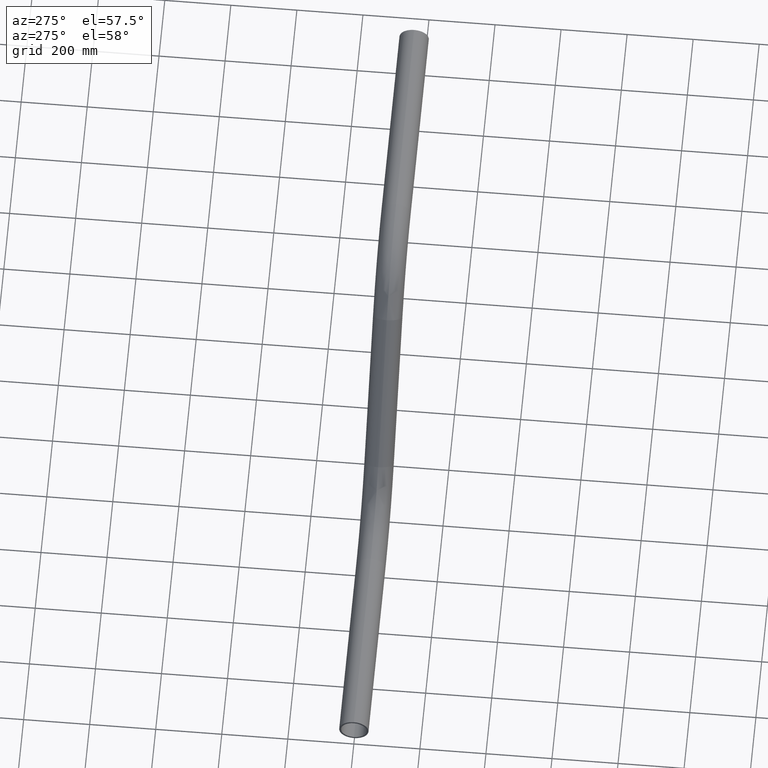
[diagram: clean part render]
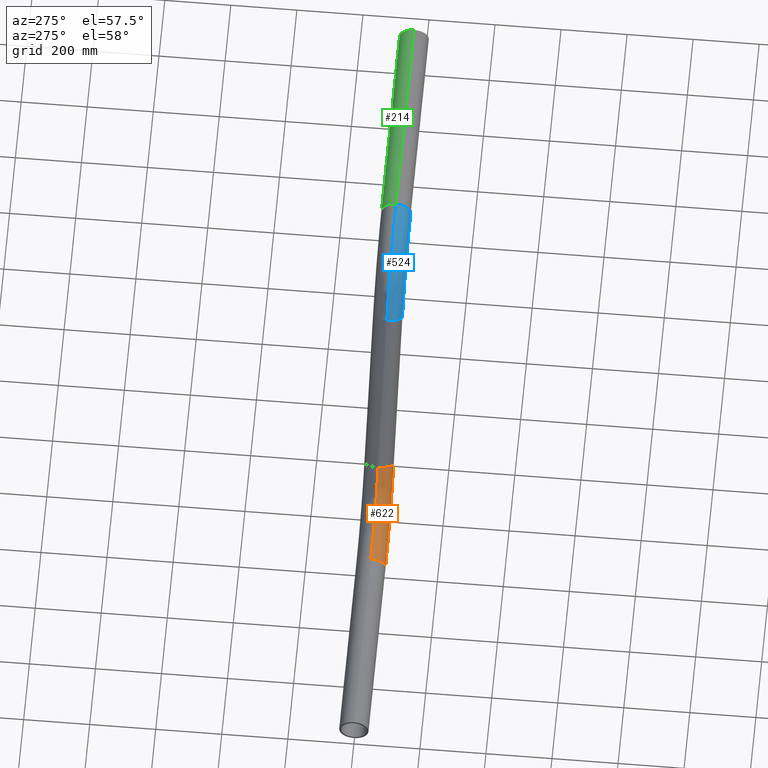
[diagram: same view with three faces highlighted in distinct colors, each labeled with its STEP entity id]
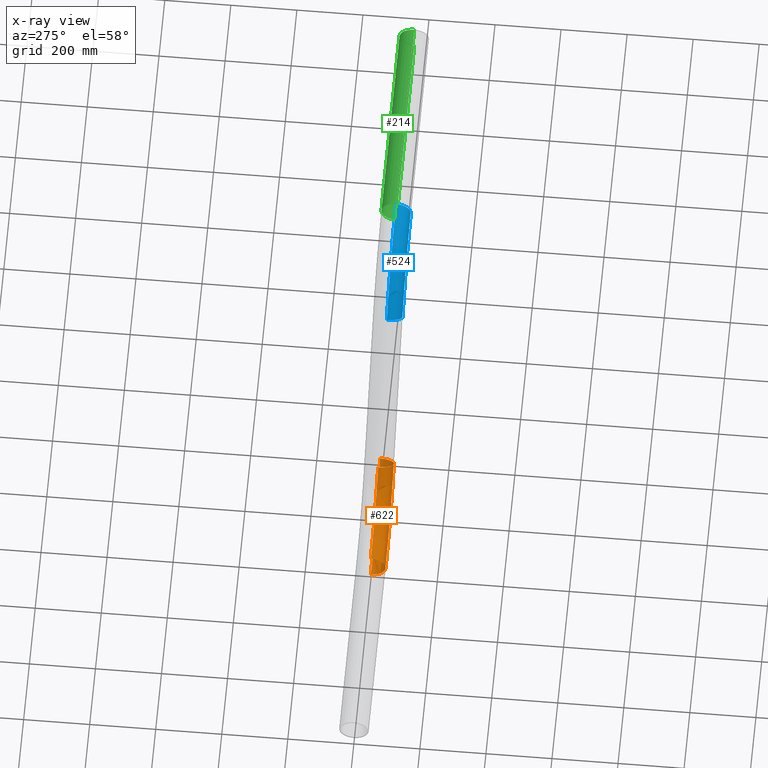
[diagram: x-ray of the same camera — body ghosted, the three highlighted faces saturated]
A machine part, auxiliary view with three faces highlighted in distinct colors.
The next image is the same camera in x-ray (body ghosted, the three faces saturated) — at least one of them is partly hidden behind the body in this view.
Their STEP definitions:

[orange] entity #622 — the highlighted toroidal blend (fillet) surface has major radius 375 mm and minor (blend) radius 44.45 mm.
#11 = DIRECTION ( 'NONE',  ( 0.000000000000000000, 1.000000000000000000, 0.000000000000000000 ) ) ;
#13 = AXIS2_PLACEMENT_3D ( 'NONE', #129, #449, #195 ) ;
#35 = DIRECTION ( 'NONE',  ( 0.6427876096865375866, 0.000000000000000000, 0.7660444431189794567 ) ) ;
#43 = DIRECTION ( 'NONE',  ( 1.000000000000000000, 0.000000000000000000, 0.000000000000000000 ) ) ;
#44 = VERTEX_POINT ( 'NONE', #611 ) ;
#55 = CARTESIAN_POINT ( 'NONE',  ( 586.7355748789869949, 5.443555022209986486E-15, -44.45000000000000995 ) ) ;
#63 = CARTESIAN_POINT ( 'NONE',  ( 586.7355748789869949, -5.443555022209986486E-15, 375.0000000000000000 ) ) ;
#67 = ORIENTED_EDGE ( 'NONE', *, *, #303, .T. ) ;
#71 = CARTESIAN_POINT ( 'NONE',  ( 586.7355748789869949, 0.000000000000000000, 375.0000000000000000 ) ) ;
#119 = CIRCLE ( 'NONE', #13, 419.4499999999998749 ) ;
#129 = CARTESIAN_POINT ( 'NONE',  ( 586.7355748789869949, 0.000000000000000000, 375.0000000000000000 ) ) ;
#131 = DIRECTION ( 'NONE',  ( 0.000000000000000000, 0.000000000000000000, -1.000000000000000000 ) ) ;
#187 = CIRCLE ( 'NONE', #392, 44.45000000000000995 ) ;
#195 = DIRECTION ( 'NONE',  ( 0.000000000000000000, 0.000000000000000000, 1.000000000000000000 ) ) ;
#226 = FACE_OUTER_BOUND ( 'NONE', #305, .T. ) ;
#230 = CARTESIAN_POINT ( 'NONE',  ( 839.9515655519659276, 0.000000000000000000, 162.5265556181147986 ) ) ;
#243 = AXIS2_PLACEMENT_3D ( 'NONE', #63, #11, #589 ) ;
#244 = CARTESIAN_POINT ( 'NONE',  ( 586.7355748789869949, 0.000000000000000000, 44.45000000000000995 ) ) ;
#284 = DIRECTION ( 'NONE',  ( 0.000000000000000000, 1.000000000000000000, 0.000000000000000000 ) ) ;
#291 = CARTESIAN_POINT ( 'NONE',  ( 874.0022410486042190, 0.000000000000000000, 133.9546463675484347 ) ) ;
#295 = DIRECTION ( 'NONE',  ( 0.7660444431189794567, 0.000000000000000000, -0.6427876096865375866 ) ) ;
#300 = CIRCLE ( 'NONE', #491, 44.45000000000000995 ) ;
#303 = EDGE_CURVE ( 'NONE', #650, #394, #548, .T. ) ;
#305 = EDGE_LOOP ( 'NONE', ( #542, #626, #67, #475 ) ) ;
#365 = EDGE_CURVE ( 'NONE', #44, #486, #119, .T. ) ;
#373 = EDGE_CURVE ( 'NONE', #650, #44, #300, .T. ) ;
#392 = AXIS2_PLACEMENT_3D ( 'NONE', #444, #43, #131 ) ;
#394 = VERTEX_POINT ( 'NONE', #244 ) ;
#395 = EDGE_CURVE ( 'NONE', #394, #486, #187, .T. ) ;
#416 = TOROIDAL_SURFACE ( 'NONE', #616, 374.9999999999999432, 44.45000000000000995 ) ;
#444 = CARTESIAN_POINT ( 'NONE',  ( 586.7355748789869949, 0.000000000000000000, 0.000000000000000000 ) ) ;
#449 = DIRECTION ( 'NONE',  ( 0.000000000000000000, 1.000000000000000000, 0.000000000000000000 ) ) ;
#475 = ORIENTED_EDGE ( 'NONE', *, *, #395, .T. ) ;
#486 = VERTEX_POINT ( 'NONE', #55 ) ;
#491 = AXIS2_PLACEMENT_3D ( 'NONE', #291, #35, #295 ) ;
#527 = DIRECTION ( 'NONE',  ( 0.000000000000000000, 0.000000000000000000, 1.000000000000000000 ) ) ;
#542 = ORIENTED_EDGE ( 'NONE', *, *, #365, .F. ) ;
#548 = CIRCLE ( 'NONE', #243, 330.5499999999998977 ) ;
#589 = DIRECTION ( 'NONE',  ( 0.000000000000000000, 0.000000000000000000, 1.000000000000000000 ) ) ;
#611 = CARTESIAN_POINT ( 'NONE',  ( 908.0529165452430789, 5.443555022209986486E-15, 105.3827371169816445 ) ) ;
#616 = AXIS2_PLACEMENT_3D ( 'NONE', #71, #284, #527 ) ;
#622 = ADVANCED_FACE ( 'NONE', ( #226 ), #416, .T. ) ;
#626 = ORIENTED_EDGE ( 'NONE', *, *, #373, .F. ) ;
#650 = VERTEX_POINT ( 'NONE', #230 ) ;

[blue] entity #524 — the highlighted toroidal blend (fillet) surface has major radius 375 mm and minor (blend) radius 44.45 mm.
#8 = CARTESIAN_POINT ( 'NONE',  ( 1207.687597308056411, 5.443555022209986486E-15, 462.4734443818851446 ) ) ;
#17 = DIRECTION ( 'NONE',  ( -0.000000000000000000, -1.000000000000000000, 0.000000000000000000 ) ) ;
#29 = VERTEX_POINT ( 'NONE', #8 ) ;
#52 = DIRECTION ( 'NONE',  ( -0.000000000000000000, -1.000000000000000000, 0.000000000000000000 ) ) ;
#64 = ORIENTED_EDGE ( 'NONE', *, *, #268, .T. ) ;
#73 = AXIS2_PLACEMENT_3D ( 'NONE', #432, #76, #238 ) ;
#76 = DIRECTION ( 'NONE',  ( -0.000000000000000000, -1.000000000000000000, 0.000000000000000000 ) ) ;
#95 = AXIS2_PLACEMENT_3D ( 'NONE', #183, #17, #580 ) ;
#112 = CIRCLE ( 'NONE', #232, 44.44999999999994600 ) ;
#114 = CARTESIAN_POINT ( 'NONE',  ( 1173.636921811417778, 0.000000000000000000, 491.0453536324517927 ) ) ;
#130 = VERTEX_POINT ( 'NONE', #608 ) ;
#164 = CIRCLE ( 'NONE', #95, 330.5499999999997840 ) ;
#178 = DIRECTION ( 'NONE',  ( 1.000000000000000000, 0.000000000000000000, 1.165734175856414367E-15 ) ) ;
#181 = CARTESIAN_POINT ( 'NONE',  ( 1139.586246314779146, 0.000000000000000000, 519.6172628830182703 ) ) ;
#183 = CARTESIAN_POINT ( 'NONE',  ( 1460.903587981035116, 5.443555022209986486E-15, 250.0000000000000000 ) ) ;
#199 = ORIENTED_EDGE ( 'NONE', *, *, #299, .F. ) ;
#232 = AXIS2_PLACEMENT_3D ( 'NONE', #114, #423, #329 ) ;
#238 = DIRECTION ( 'NONE',  ( 0.000000000000000000, 0.000000000000000000, -1.000000000000000000 ) ) ;
#263 = FACE_OUTER_BOUND ( 'NONE', #520, .T. ) ;
#266 = ORIENTED_EDGE ( 'NONE', *, *, #579, .F. ) ;
#268 = EDGE_CURVE ( 'NONE', #326, #29, #112, .T. ) ;
#297 = TOROIDAL_SURFACE ( 'NONE', #376, 374.9999999999997726, 44.45000000000000995 ) ;
#299 = EDGE_CURVE ( 'NONE', #130, #530, #523, .T. ) ;
#319 = CARTESIAN_POINT ( 'NONE',  ( 1460.903587981035116, 0.000000000000000000, 250.0000000000000000 ) ) ;
#326 = VERTEX_POINT ( 'NONE', #181 ) ;
#329 = DIRECTION ( 'NONE',  ( 0.7660444431189782355, 0.000000000000000000, -0.6427876096865391409 ) ) ;
#354 = CARTESIAN_POINT ( 'NONE',  ( 1460.903587981034661, 5.443555022210016463E-15, 580.5499999999998408 ) ) ;
#369 = CIRCLE ( 'NONE', #73, 419.4499999999997613 ) ;
#376 = AXIS2_PLACEMENT_3D ( 'NONE', #319, #52, #408 ) ;
#379 = AXIS2_PLACEMENT_3D ( 'NONE', #532, #178, #518 ) ;
#408 = DIRECTION ( 'NONE',  ( 0.000000000000000000, 0.000000000000000000, -1.000000000000000000 ) ) ;
#423 = DIRECTION ( 'NONE',  ( 0.6427876096865378086, 0.000000000000000000, 0.7660444431189793457 ) ) ;
#424 = ORIENTED_EDGE ( 'NONE', *, *, #653, .T. ) ;
#432 = CARTESIAN_POINT ( 'NONE',  ( 1460.903587981035116, 0.000000000000000000, 250.0000000000000000 ) ) ;
#518 = DIRECTION ( 'NONE',  ( 0.000000000000000000, 0.000000000000000000, -1.000000000000000000 ) ) ;
#520 = EDGE_LOOP ( 'NONE', ( #199, #424, #64, #266 ) ) ;
#523 = CIRCLE ( 'NONE', #379, 44.44999999999998863 ) ;
#524 = ADVANCED_FACE ( 'NONE', ( #263 ), #297, .T. ) ;
#530 = VERTEX_POINT ( 'NONE', #354 ) ;
#532 = CARTESIAN_POINT ( 'NONE',  ( 1460.903587981034661, 0.000000000000000000, 624.9999999999997726 ) ) ;
#579 = EDGE_CURVE ( 'NONE', #530, #29, #164, .T. ) ;
#580 = DIRECTION ( 'NONE',  ( 0.000000000000000000, 0.000000000000000000, -1.000000000000000000 ) ) ;
#608 = CARTESIAN_POINT ( 'NONE',  ( 1460.903587981034661, 0.000000000000000000, 669.4499999999998181 ) ) ;
#653 = EDGE_CURVE ( 'NONE', #130, #326, #369, .T. ) ;

[green] entity #214 — the highlighted cylindrical surface (edge-blend (fillet) strip) has radius 44.45 mm, axis along (-1, -0, -0).
#37 = VERTEX_POINT ( 'NONE', #370 ) ;
#65 = AXIS2_PLACEMENT_3D ( 'NONE', #393, #193, #497 ) ;
#72 = CARTESIAN_POINT ( 'NONE',  ( 2086.038216172909415, 0.000000000000000000, 669.4500000000000455 ) ) ;
#74 = EDGE_LOOP ( 'NONE', ( #513, #182, #166, #464 ) ) ;
#77 = DIRECTION ( 'NONE',  ( 1.000000000000000000, 0.000000000000000000, 0.000000000000000000 ) ) ;
#99 = VECTOR ( 'NONE', #596, 1000.000000000000000 ) ;
#130 = VERTEX_POINT ( 'NONE', #608 ) ;
#166 = ORIENTED_EDGE ( 'NONE', *, *, #346, .T. ) ;
#182 = ORIENTED_EDGE ( 'NONE', *, *, #249, .T. ) ;
#193 = DIRECTION ( 'NONE',  ( 1.000000000000000000, 0.000000000000000000, 1.165734175856414367E-15 ) ) ;
#214 = ADVANCED_FACE ( 'NONE', ( #387 ), #227, .T. ) ;
#219 = VERTEX_POINT ( 'NONE', #72 ) ;
#222 = CARTESIAN_POINT ( 'NONE',  ( 2086.038216172909415, 5.443555022209986486E-15, 580.5499999999999545 ) ) ;
#227 = CYLINDRICAL_SURFACE ( 'NONE', #463, 44.44999999999998863 ) ;
#242 = CIRCLE ( 'NONE', #65, 44.44999999999998863 ) ;
#249 = EDGE_CURVE ( 'NONE', #37, #530, #427, .T. ) ;
#285 = DIRECTION ( 'NONE',  ( 0.000000000000000000, 0.000000000000000000, 1.000000000000000000 ) ) ;
#346 = EDGE_CURVE ( 'NONE', #530, #130, #242, .T. ) ;
#348 = CARTESIAN_POINT ( 'NONE',  ( 2086.038216172909415, 0.000000000000000000, 625.0000000000000000 ) ) ;
#354 = CARTESIAN_POINT ( 'NONE',  ( 1460.903587981034661, 5.443555022210016463E-15, 580.5499999999998408 ) ) ;
#370 = CARTESIAN_POINT ( 'NONE',  ( 2086.038216172909415, 5.443555022209988853E-15, 580.5499999999999545 ) ) ;
#387 = FACE_OUTER_BOUND ( 'NONE', #74, .T. ) ;
#393 = CARTESIAN_POINT ( 'NONE',  ( 1460.903587981034661, 0.000000000000000000, 624.9999999999997726 ) ) ;
#396 = LINE ( 'NONE', #536, #99 ) ;
#411 = EDGE_CURVE ( 'NONE', #219, #130, #396, .T. ) ;
#417 = EDGE_CURVE ( 'NONE', #37, #219, #468, .T. ) ;
#427 = LINE ( 'NONE', #222, #539 ) ;
#463 = AXIS2_PLACEMENT_3D ( 'NONE', #573, #576, #285 ) ;
#464 = ORIENTED_EDGE ( 'NONE', *, *, #411, .F. ) ;
#468 = CIRCLE ( 'NONE', #560, 44.44999999999998863 ) ;
#497 = DIRECTION ( 'NONE',  ( 0.000000000000000000, 0.000000000000000000, -1.000000000000000000 ) ) ;
#513 = ORIENTED_EDGE ( 'NONE', *, *, #417, .F. ) ;
#530 = VERTEX_POINT ( 'NONE', #354 ) ;
#536 = CARTESIAN_POINT ( 'NONE',  ( 2086.038216172909415, 0.000000000000000000, 669.4500000000000455 ) ) ;
#539 = VECTOR ( 'NONE', #618, 1000.000000000000000 ) ;
#560 = AXIS2_PLACEMENT_3D ( 'NONE', #348, #77, #599 ) ;
#573 = CARTESIAN_POINT ( 'NONE',  ( 2086.038216172909415, 0.000000000000000000, 625.0000000000000000 ) ) ;
#576 = DIRECTION ( 'NONE',  ( -1.000000000000000000, -0.000000000000000000, -3.551948570938521745E-16 ) ) ;
#596 = DIRECTION ( 'NONE',  ( -1.000000000000000000, -0.000000000000000000, -3.551948570938521745E-16 ) ) ;
#599 = DIRECTION ( 'NONE',  ( 0.000000000000000000, 0.000000000000000000, -1.000000000000000000 ) ) ;
#608 = CARTESIAN_POINT ( 'NONE',  ( 1460.903587981034661, 0.000000000000000000, 669.4499999999998181 ) ) ;
#618 = DIRECTION ( 'NONE',  ( -1.000000000000000000, -0.000000000000000000, -3.551948570938521745E-16 ) ) ;